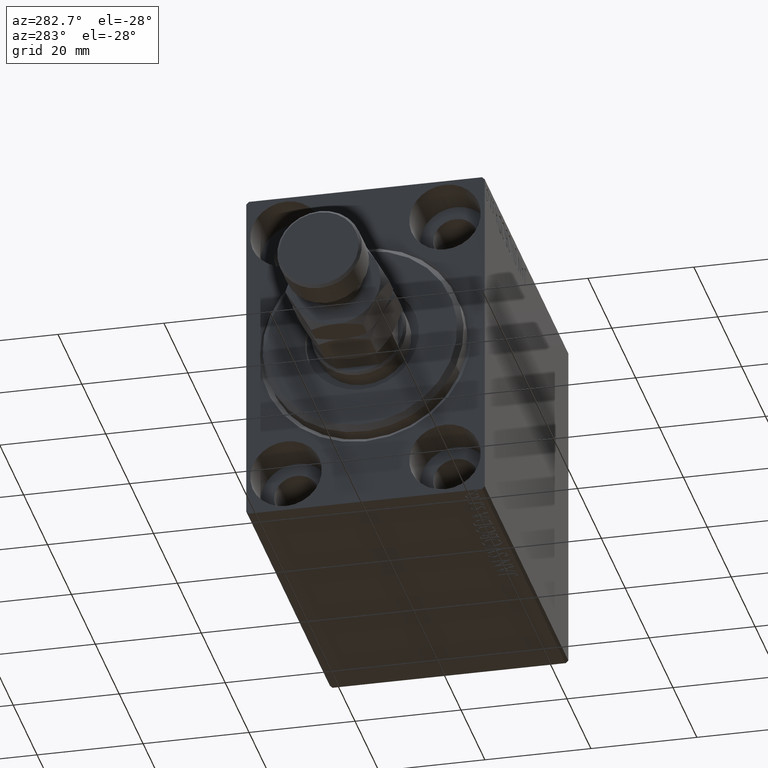
[diagram: clean part render]
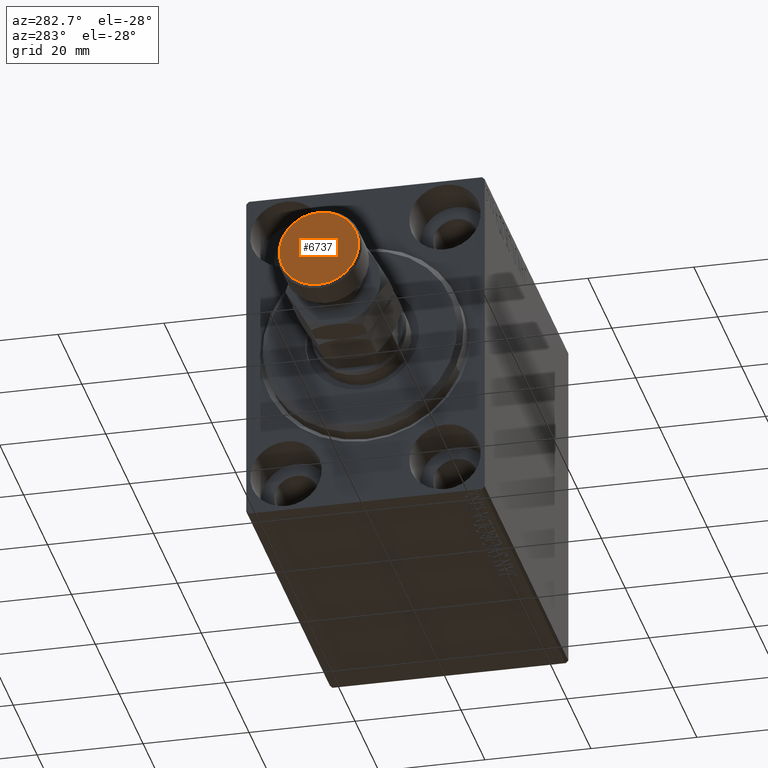
[diagram: same view with one face highlighted and labeled with its STEP entity id]
A machine part, auxiliary view. The second image highlights one B-rep face of the part: STEP entity #6737.
In plain terms, the highlighted planar face has unit normal (-1, 0, 0).
Its self-contained STEP definition (entity closure, byte-faithful):
#814 = AXIS2_PLACEMENT_3D ( 'NONE', #6050, #16606, #30629 ) ;
#993 = CARTESIAN_POINT ( 'NONE',  ( 0.000000000000000000, 0.000000000000000000, 28.00000000000000000 ) ) ;
#2552 = ORIENTED_EDGE ( 'NONE', *, *, #23806, .T. ) ;
#5581 = FACE_OUTER_BOUND ( 'NONE', #22674, .T. ) ;
#5812 = CARTESIAN_POINT ( 'NONE',  ( 0.000000000000000000, 0.000000000000000000, 28.00000000000000000 ) ) ;
#6050 = CARTESIAN_POINT ( 'NONE',  ( 0.000000000000000000, 0.000000000000000000, 28.00000000000000000 ) ) ;
#6358 = CARTESIAN_POINT ( 'NONE',  ( 7.500000000000000000, 9.491012693391985815E-16, 28.00000000000000000 ) ) ;
#6737 = ADVANCED_FACE ( 'NONE', ( #5581 ), #23246, .T. ) ;
#7395 = DIRECTION ( 'NONE',  ( 0.000000000000000000, 0.000000000000000000, 1.000000000000000000 ) ) ;
#10841 = DIRECTION ( 'NONE',  ( 1.000000000000000000, 0.000000000000000000, -0.000000000000000000 ) ) ;
#15007 = CARTESIAN_POINT ( 'NONE',  ( -7.500000000000000000, 0.000000000000000000, 28.00000000000000000 ) ) ;
#15699 = DIRECTION ( 'NONE',  ( 1.000000000000000000, 0.000000000000000000, 0.000000000000000000 ) ) ;
#16606 = DIRECTION ( 'NONE',  ( 0.000000000000000000, 0.000000000000000000, 1.000000000000000000 ) ) ;
#18236 = ORIENTED_EDGE ( 'NONE', *, *, #36983, .T. ) ;
#22674 = EDGE_LOOP ( 'NONE', ( #18236, #2552 ) ) ;
#23246 = PLANE ( 'NONE',  #25951 ) ;
#23806 = EDGE_CURVE ( 'NONE', #30659, #34726, #44105, .T. ) ;
#25429 = CIRCLE ( 'NONE', #27617, 7.500000000000000000 ) ;
#25951 = AXIS2_PLACEMENT_3D ( 'NONE', #5812, #7395, #10841 ) ;
#27617 = AXIS2_PLACEMENT_3D ( 'NONE', #993, #43733, #15699 ) ;
#30629 = DIRECTION ( 'NONE',  ( 1.000000000000000000, 0.000000000000000000, 0.000000000000000000 ) ) ;
#30659 = VERTEX_POINT ( 'NONE', #6358 ) ;
#34726 = VERTEX_POINT ( 'NONE', #15007 ) ;
#36983 = EDGE_CURVE ( 'NONE', #34726, #30659, #25429, .T. ) ;
#43733 = DIRECTION ( 'NONE',  ( 0.000000000000000000, 0.000000000000000000, 1.000000000000000000 ) ) ;
#44105 = CIRCLE ( 'NONE', #814, 7.500000000000000000 ) ;